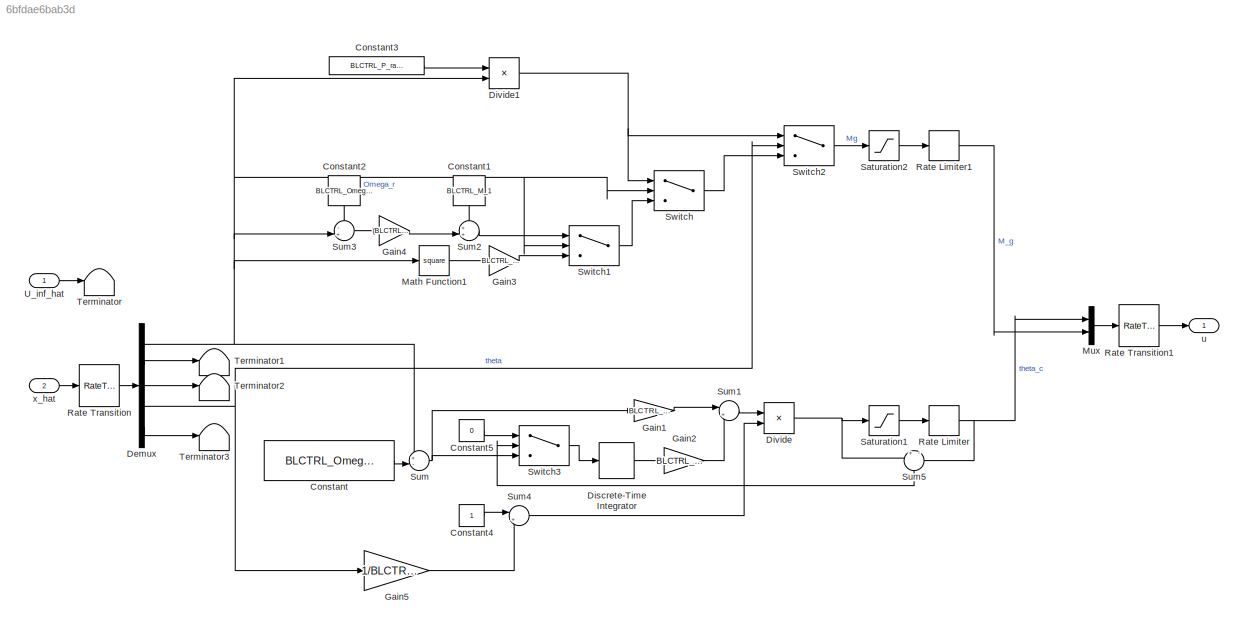
MODEL slx_6bfdae6bab3d
KIND model
CONFIG AbsTol = auto
CONFIG EnableMultiTasking = on
CONFIG FixedStep = DT
CONFIG MaxStep = auto
CONFIG MinStep = auto
CONFIG RelTol = 1e-3
CONFIG SampleTimeConstraint = Unconstrained
CONFIG SolverName = FixedStepAuto
CONFIG StartTime = 0.0
CONFIG StopTime = TMax
BLOCK [Constant] Constant
  SampleTime = BLCTRL_T
  Value = BLCTRL_Omega_rated
BLOCK [Constant] Constant1
  NameLocation = left
  SampleTime = BLCTRL_T
  Value = BLCTRL_M_1
BLOCK [Constant] Constant2
  NameLocation = left
  SampleTime = BLCTRL_T
  Value = BLCTRL_Omega_1
BLOCK [Constant] Constant3
  SampleTime = BLCTRL_T
  Value = BLCTRL_P_rated
BLOCK [Constant] Constant4
  SampleTime = BLCTRL_T
BLOCK [Constant] Constant5
  SampleTime = BLCTRL_T
  Value = 0
BLOCK [Demux] Demux
  Outputs = 5
  Ports = [1, 5]
BLOCK [DiscreteIntegrator] Discrete-Time Integrator
  ICPrevOutput = DiscIntNeverNeededParam
  ICPrevScaledInput = DiscIntNeverNeededParam
  InitialConditionSetting = Auto
  Ports = [1, 1]
  SampleTime = BLCTRL_T
BLOCK [Product] Divide
  Inputs = */
  Ports = [2, 1]
BLOCK [Product] Divide1
  Inputs = */
  Ports = [2, 1]
BLOCK [Gain] Gain1
  Gain = BLCTRL_K_P
BLOCK [Gain] Gain2
  Gain = BLCTRL_K_I
BLOCK [Gain] Gain3
  Gain = BLCTRL_K_T
BLOCK [Gain] Gain4
  Gain = (BLCTRL_M_2-BLCTRL_M_1)/(BLCTRL_Omega_2-BLCTRL_Omega_1)
BLOCK [Gain] Gain5
  Gain = 1/BLCTRL_KK
BLOCK [Math] Math Function1
  Operator = square
  Ports = [1, 1]
BLOCK [Mux] Mux
  DisplayOption = bar
  Inputs = 2
  Ports = [2, 1]
BLOCK [RateLimiter] Rate Limiter
  FallingSlewLimit = -BLCTRL_theta_rate
  RisingSlewLimit = BLCTRL_theta_rate
  SampleTimeMode = inherited
BLOCK [RateLimiter] Rate Limiter1
  FallingSlewLimit = -BLCTRL_torque_rate
  RisingSlewLimit = BLCTRL_torque_rate
  SampleTimeMode = inherited
BLOCK [RateTransition] Rate Transition
  InitialCondition = zeros(5,1)
  OutPortSampleTime = BLCTRL_T
BLOCK [RateTransition] Rate Transition1
  InitialCondition = zeros(2,1)
BLOCK [Saturate] Saturation1
  LowerLimit = BLCTRL_theta_star
  UpperLimit = BLCTRL_theta_max
BLOCK [Saturate] Saturation2
  LowerLimit = -1.1*BLCTRL_M_2
  UpperLimit = 1.1*BLCTRL_M_2
BLOCK [Sum] Sum
  Inputs = +-|
  Ports = [2, 1]
BLOCK [Sum] Sum1
  Inputs = |++
  Ports = [2, 1]
BLOCK [Sum] Sum2
  Inputs = ++|
  Ports = [2, 1]
BLOCK [Sum] Sum3
  Inputs = -+|
  Ports = [2, 1]
BLOCK [Sum] Sum4
  Inputs = |++
  Ports = [2, 1]
BLOCK [Sum] Sum5
  Inputs = +|-
  NameLocation = left
  Ports = [2, 1]
BLOCK [Switch] Switch
  Criteria = u2 > Threshold
  InputSameDT = off
  SaturateOnIntegerOverflow = off
  Threshold = BLCTRL_Omega_2
BLOCK [Switch] Switch1
  Criteria = u2 > Threshold
  InputSameDT = off
  SaturateOnIntegerOverflow = off
  Threshold = BLCTRL_Omega_1
BLOCK [Switch] Switch2
  Criteria = u2 > Threshold
  InputSameDT = off
  SaturateOnIntegerOverflow = off
  Threshold = BLCTRL_theta_sw
BLOCK [Switch] Switch3
  Criteria = u2 ~= 0
  InputSameDT = off
  SaturateOnIntegerOverflow = off
  Threshold = BLCTRL_Omega_1
BLOCK [Terminator] Terminator
BLOCK [Terminator] Terminator1
BLOCK [Terminator] Terminator2
BLOCK [Terminator] Terminator3
BLOCK [Inport] U_inf_hat
  PortDimensions = 1
BLOCK [Outport] u
  PortDimensions = [2 1]
BLOCK [Inport] x_hat
  Port = 2
  PortDimensions = [5 1]
LINE Constant1:1 -> Sum2:1
LINE Constant2:1 -> Sum3:1
LINE Constant3:1 -> Divide1:1
LINE Constant4:1 -> Sum4:1
LINE Constant5:1 -> Switch3:1
LINE Constant:1 -> Sum:2
NET Demux:1 -> Divide1:2, Math Function1:1, Sum3:2, Sum:1, Switch1:2, Switch:2
LINE Demux:2 -> Terminator1:1
LINE Demux:3 -> Terminator2:1
NET Demux:4 -> Gain5:1, Switch2:2
LINE Demux:5 -> Terminator3:1
LINE Discrete-Time Integrator:1 -> Gain2:1
NET Divide1:1 -> Switch2:1, Switch:1
NET Divide:1 -> Saturation1:1, Sum5:1
LINE Gain1:1 -> Sum1:1
LINE Gain2:1 -> Sum1:2
LINE Gain3:1 -> Switch1:3
LINE Gain4:1 -> Sum2:2
LINE Gain5:1 -> Sum4:2
LINE Math Function1:1 -> Gain3:1
LINE Mux:1 -> Rate Transition1:1
LINE Rate Limiter1:1 -> Mux:2
NET Rate Limiter:1 -> Mux:1, Sum5:2
LINE Rate Transition1:1 -> u:1
LINE Rate Transition:1 -> Demux:1
LINE Saturation1:1 -> Rate Limiter:1
LINE Saturation2:1 -> Rate Limiter1:1
LINE Sum1:1 -> Divide:1
LINE Sum2:1 -> Switch1:1
LINE Sum3:1 -> Gain4:1
LINE Sum4:1 -> Divide:2
LINE Sum5:1 -> Switch3:2
NET Sum:1 -> Gain1:1, Switch3:3
LINE Switch1:1 -> Switch:3
LINE Switch2:1 -> Saturation2:1
LINE Switch3:1 -> Discrete-Time Integrator:1
LINE Switch:1 -> Switch2:3
LINE U_inf_hat:1 -> Terminator:1
LINE x_hat:1 -> Rate Transition:1
note: NET lines group one-source signal fan-out (src -> all destinations, sorted); 1:1 wires keep LINE
